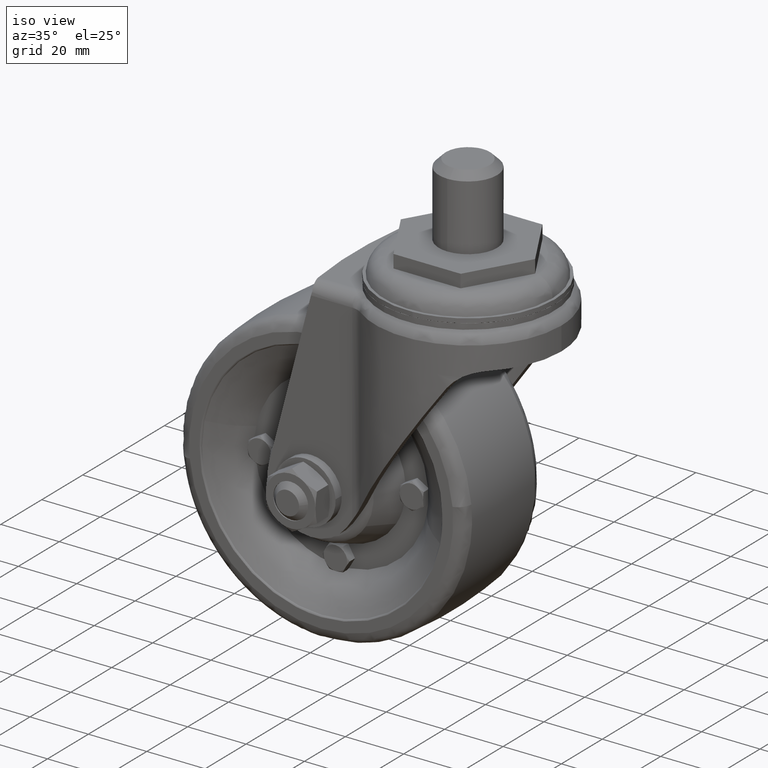
[diagram: clean part render]
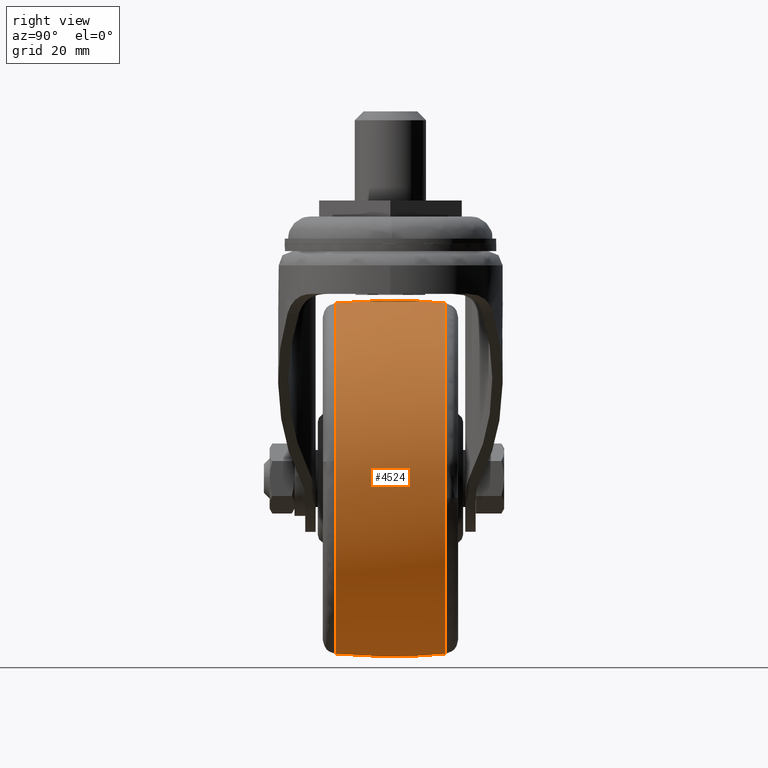
[diagram: tour spotlight — one face highlighted and labeled with its STEP entity id]
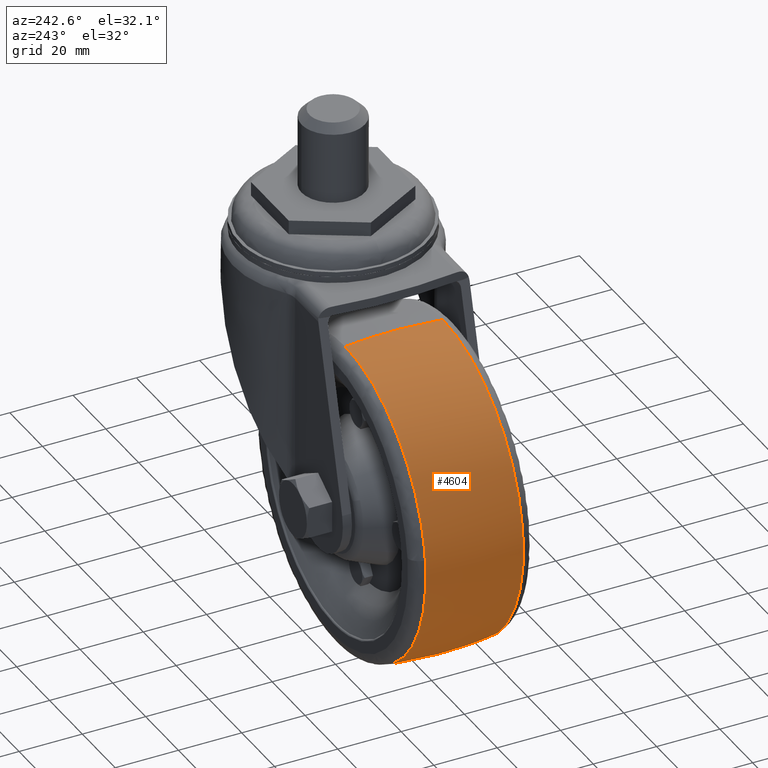
[diagram: tour spotlight — one face highlighted and labeled with its STEP entity id]
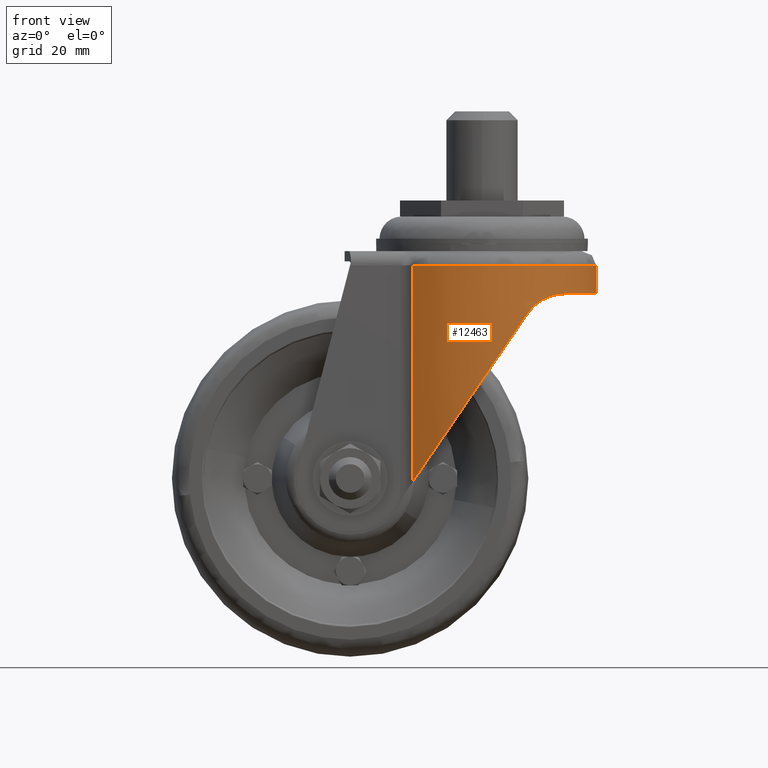
[diagram: tour spotlight — one face highlighted and labeled with its STEP entity id]
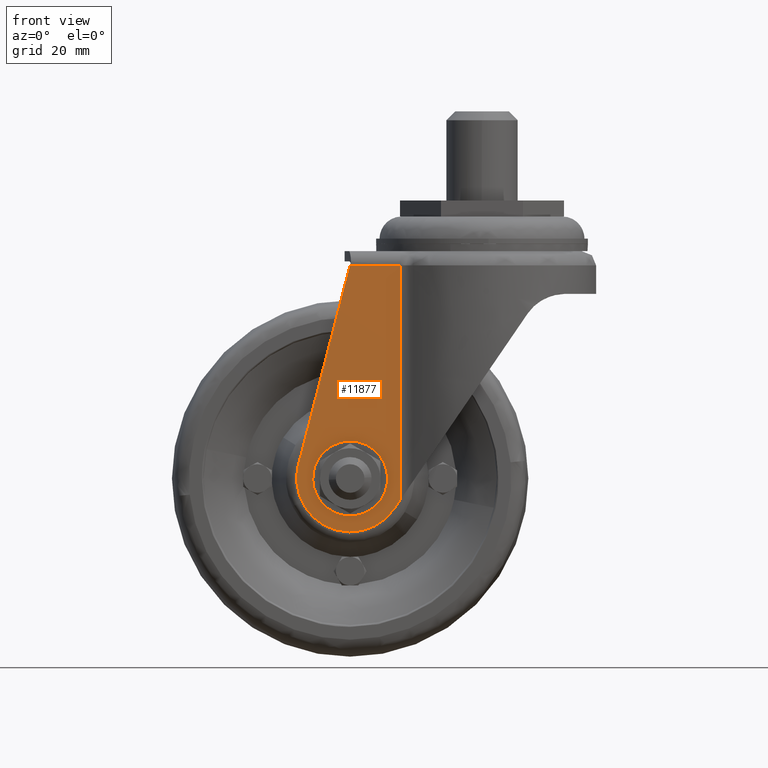
[diagram: tour spotlight — one face highlighted and labeled with its STEP entity id]
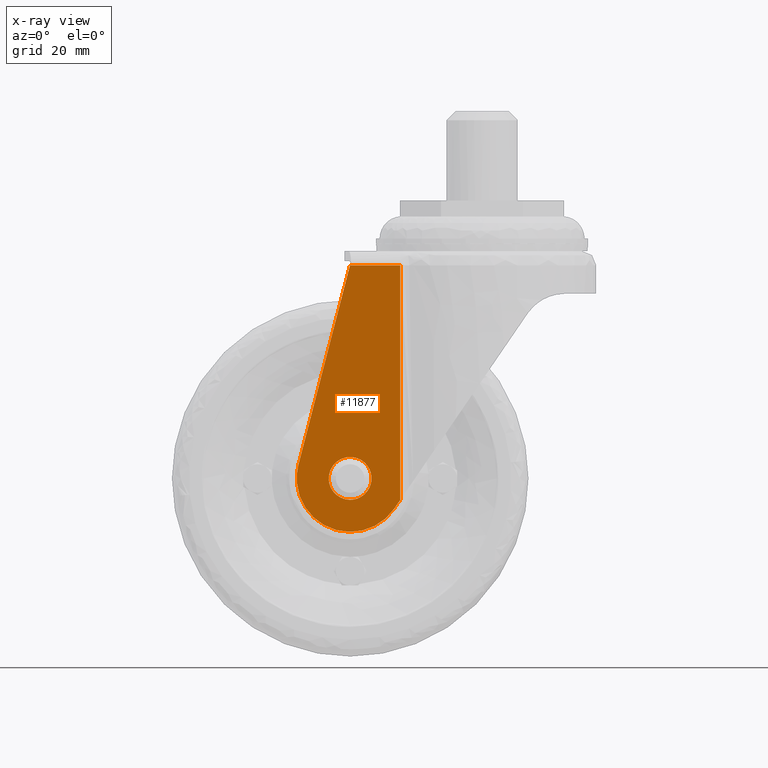
[diagram: x-ray of the same camera — body ghosted, this tour face saturated]
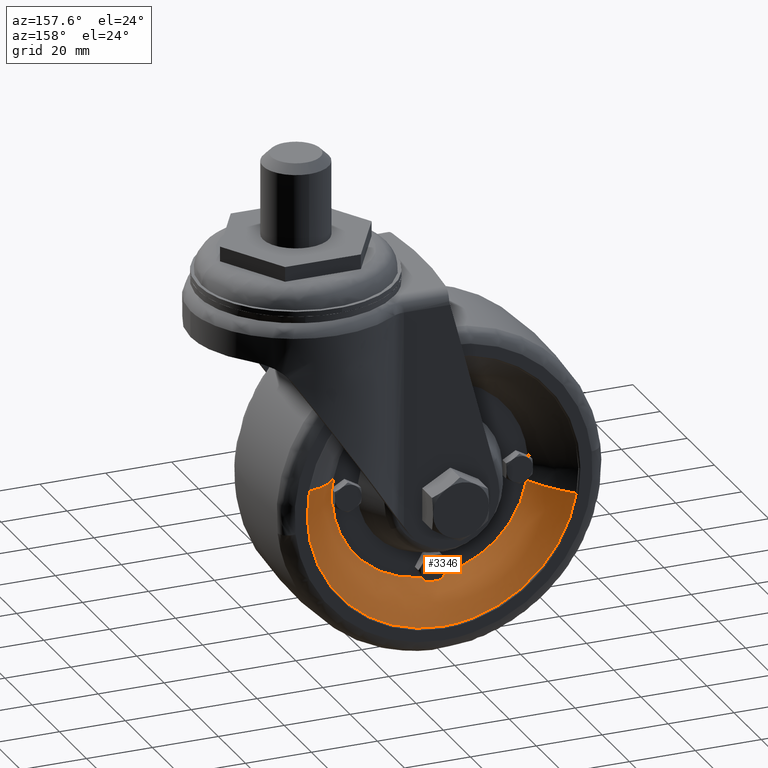
[diagram: tour spotlight — one face highlighted and labeled with its STEP entity id]
A machine part: a face-by-face anatomy tour. The part has 312 B-rep faces; the first image is the clean iso view, then the 5 largest visible faces are spotlighted one at a time (largest first), each with its STEP entity span.

Face 1 — right view, entity #4524. In plain terms, the highlighted face is a freeform B-spline surface patch.
Definition (entity closure, byte-faithful):
#4296=CARTESIAN_POINT('',(11.891878821661811,15.410934890007050,-79.053238610616631));
#4297=VERTEX_POINT('',#4296);
#4298=CARTESIAN_POINT('',(-37.0,15.410934763899361,-24.293756532435118));
#4299=VERTEX_POINT('',#4298);
#4300=CARTESIAN_POINT('',(11.891878821661811,15.410934890007050,-79.053238610616631));
#4301=CARTESIAN_POINT('',(12.206242153597191,15.410934886819268,-76.285517271672560));
#4302=CARTESIAN_POINT('',(12.206242119349900,15.410934883249110,-73.500000130063526));
#4303=CARTESIAN_POINT('',(12.206241514370525,15.410934820182140,-24.293756593786924));
#4304=CARTESIAN_POINT('',(-37.0,15.410934763899361,-24.293756532435118));
#4312=(BOUNDED_CURVE()B_SPLINE_CURVE(2,(#4300,#4301,#4302,#4303,#4304),.UNSPECIFIED.,.F.,.U.)B_SPLINE_CURVE_WITH_KNOTS((3,2,3),(0.230444237518526,0.250000000000000,0.500000000000000),.UNSPECIFIED.)CURVE()GEOMETRIC_REPRESENTATION_ITEM()RATIONAL_B_SPLINE_CURVE((0.957762334974693,0.977088999121799,1.0,0.707106781186548,1.0))REPRESENTATION_ITEM(''));
#4313=EDGE_CURVE('',#4297,#4299,#4312,.T.);
#4390=CARTESIAN_POINT('',(-37.0,15.410934763958540,-122.706243467558810));
#4391=VERTEX_POINT('',#4390);
#4392=CARTESIAN_POINT('',(-37.0,15.410934763958540,-122.706243467558810));
#4393=CARTESIAN_POINT('',(6.933682007419955,15.410934826995927,-122.706243536273530));
#4394=CARTESIAN_POINT('',(11.891878821661811,15.410934890007050,-79.053238610616631));
#4402=(BOUNDED_CURVE()B_SPLINE_CURVE(2,(#4392,#4393,#4394),.UNSPECIFIED.,.F.,.U.)B_SPLINE_CURVE_WITH_KNOTS((3,3),(0.0,0.230444237518526),.UNSPECIFIED.)CURVE()GEOMETRIC_REPRESENTATION_ITEM()RATIONAL_B_SPLINE_CURVE((1.0,0.730017782064749,0.957762334974693))REPRESENTATION_ITEM(''));
#4403=EDGE_CURVE('',#4391,#4297,#4402,.T.);
#4427=CARTESIAN_POINT('',(-38.370946922678868,-16.959582319406202,-122.538158092319660));
#4428=CARTESIAN_POINT('',(-38.397836884592934,-8.507066001675820,-123.499999999999990));
#4429=CARTESIAN_POINT('',(-38.397836884592948,-4.867810E-015,-123.500000000000060));
#4430=CARTESIAN_POINT('',(-38.397836884592934,8.507066001675813,-123.499999999999990));
#4431=CARTESIAN_POINT('',(-38.370946922678868,16.959582319406202,-122.538158092319660));
#4432=CARTESIAN_POINT('',(-37.689465487163623,-16.959582319406202,-122.538158092319730));
#4433=CARTESIAN_POINT('',(-37.702988768323664,-8.507066001675820,-123.499999999999970));
#4434=CARTESIAN_POINT('',(-37.702988768323685,-4.867810E-015,-123.499999999999970));
#4435=CARTESIAN_POINT('',(-37.702988768323664,8.507066001675813,-123.499999999999970));
#4436=CARTESIAN_POINT('',(-37.689465487163623,16.959582319406202,-122.538158092319730));
#4437=CARTESIAN_POINT('',(12.038158092319707,-16.959582319406209,-122.538158092319700));
#4438=CARTESIAN_POINT('',(12.999999999999989,-8.507066001675822,-123.499999999999990));
#4439=CARTESIAN_POINT('',(12.999999999999989,-4.867810E-015,-123.499999999999990));
#4440=CARTESIAN_POINT('',(12.999999999999989,8.507066001675815,-123.499999999999990));
#4441=CARTESIAN_POINT('',(12.038158092319707,16.959582319406209,-122.538158092319700));
#4442=CARTESIAN_POINT('',(12.038158092319710,-16.959582319406202,-73.500000000000014));
#4443=CARTESIAN_POINT('',(12.999999999999996,-8.507066001675819,-73.500000000000000));
#4444=CARTESIAN_POINT('',(12.999999999999989,-4.867810E-015,-73.500000000000000));
#4445=CARTESIAN_POINT('',(12.999999999999996,8.507066001675812,-73.500000000000000));
#4446=CARTESIAN_POINT('',(12.038158092319710,16.959582319406202,-73.500000000000014));
#4447=CARTESIAN_POINT('',(12.038158092319707,-16.959582319406209,-24.461841907680299));
#4448=CARTESIAN_POINT('',(12.999999999999989,-8.507066001675822,-23.500000000000007));
#4449=CARTESIAN_POINT('',(12.999999999999989,-4.867810E-015,-23.500000000000018));
#4450=CARTESIAN_POINT('',(12.999999999999989,8.507066001675815,-23.500000000000007));
#4451=CARTESIAN_POINT('',(12.038158092319707,16.959582319406209,-24.461841907680299));
#4452=CARTESIAN_POINT('',(-37.689465487163631,-16.959582319406202,-24.461841907680292));
#4453=CARTESIAN_POINT('',(-37.702988768323685,-8.507066001675819,-23.500000000000004));
#4454=CARTESIAN_POINT('',(-37.702988768323699,-4.867810E-015,-23.500000000000007));
#4455=CARTESIAN_POINT('',(-37.702988768323685,8.507066001675812,-23.500000000000004));
#4456=CARTESIAN_POINT('',(-37.689465487163631,16.959582319406202,-24.461841907680292));
#4457=CARTESIAN_POINT('',(-38.370946922678890,-16.959582319406209,-24.461841907680292));
#4458=CARTESIAN_POINT('',(-38.397836884592955,-8.507066001675820,-23.500000000000014));
#4459=CARTESIAN_POINT('',(-38.397836884592927,-4.867810E-015,-23.499999999999996));
#4460=CARTESIAN_POINT('',(-38.397836884592955,8.507066001675812,-23.500000000000014));
#4461=CARTESIAN_POINT('',(-38.370946922678890,16.959582319406199,-24.461841907680292));
#4469=(BOUNDED_SURFACE()B_SPLINE_SURFACE(2,2,((#4427,#4432,#4437,#4442,#4447,#4452,#4457),(#4428,#4433,#4438,#4443,#4448,#4453,#4458),(#4429,#4434,#4439,#4444,#4449,#4454,#4459),(#4430,#4435,#4440,#4445,#4450,#4455,#4460),(#4431,#4436,#4441,#4446,#4451,#4456,#4461)),.UNSPECIFIED.,.F.,.F.,.U.)B_SPLINE_SURFACE_WITH_KNOTS((3,2,3),(3,1,2,1,3),(0.0,17.164860317266871,34.329720634533743),(0.0,1.656854249492407,84.499566724111389,167.342279198730410,168.999133448222810),.UNSPECIFIED.)GEOMETRIC_REPRESENTATION_ITEM()RATIONAL_B_SPLINE_SURFACE(((0.990838572176591,0.985101587162289,0.692515351432907,0.979364602147988,0.692515351432907,0.985101587162289,0.990838572176591),(0.999616417988352,0.993828608983852,0.698650349754381,0.988040799979353,0.698650349754381,0.993828608983852,0.999616417988352),(1.011715728752538,1.005857864376269,0.707106781186548,1.0,0.707106781186548,1.005857864376269,1.011715728752539),(0.999616417988352,0.993828608983852,0.698650349754381,0.988040799979353,0.698650349754381,0.993828608983852,0.999616417988352),(0.990838572176591,0.985101587162289,0.692515351432907,0.979364602147988,0.692515351432907,0.985101587162289,0.990838572176591)))REPRESENTATION_ITEM('')SURFACE());
#4470=CARTESIAN_POINT('',(-37.0,-15.410927594411129,-122.706244208071990));
#4471=VERTEX_POINT('',#4470);
#4472=CARTESIAN_POINT('',(-37.0,-15.410927594411129,-122.706244208071990));
#4473=CARTESIAN_POINT('',(-36.999999999999943,-11.091917377430020,-123.152369070369900));
#4474=CARTESIAN_POINT('',(-37.000000000000199,-0.808320013095868,-123.764971878743490));
#4475=CARTESIAN_POINT('',(-36.999999999999702,9.492305068548527,-123.317711761316800));
#4476=CARTESIAN_POINT('',(-37.0,15.410934763958540,-122.706243467558810));
#4477=B_SPLINE_CURVE_WITH_KNOTS('',3,(#4472,#4473,#4474,#4475,#4476),.UNSPECIFIED.,.F.,.U.,(4,1,4),(-3.959780E-009,13.025978226956280,30.876357768077710),.UNSPECIFIED.);
#4478=EDGE_CURVE('',#4471,#4391,#4477,.T.);
#4479=ORIENTED_EDGE('',*,*,#4478,.T.);
#4480=ORIENTED_EDGE('',*,*,#4403,.T.);
#4481=ORIENTED_EDGE('',*,*,#4313,.T.);
#4482=CARTESIAN_POINT('',(-37.0,-15.410927594334760,-24.293755791920091));
#4483=VERTEX_POINT('',#4482);
#4484=CARTESIAN_POINT('',(-37.0,-15.410927594334760,-24.293755791920091));
#4485=CARTESIAN_POINT('',(-36.999999999999879,-10.452055005666340,-23.781499609851942));
#4486=CARTESIAN_POINT('',(-37.000000000000313,-0.161650119165620,-23.235027971120410));
#4487=CARTESIAN_POINT('',(-36.999999999999829,10.132168230290260,-23.748421156437839));
#4488=CARTESIAN_POINT('',(-37.0,15.410934763899361,-24.293756532435118));
#4489=B_SPLINE_CURVE_WITH_KNOTS('',3,(#4484,#4485,#4486,#4487,#4488),.UNSPECIFIED.,.F.,.U.,(4,1,4),(-3.958451E-009,14.955779876917060,30.876357767941411),.UNSPECIFIED.);
#4490=EDGE_CURVE('',#4483,#4299,#4489,.T.);
#4491=ORIENTED_EDGE('',*,*,#4490,.F.);
#4492=CARTESIAN_POINT('',(11.957805506314180,-15.410922276943101,-68.561615083338708));
#4493=VERTEX_POINT('',#4492);
#4494=CARTESIAN_POINT('',(11.957805506314182,-15.410922276943097,-68.561615083338708));
#4495=CARTESIAN_POINT('',(7.492496021033293,-15.410924935621916,-24.293755684045273));
#4496=CARTESIAN_POINT('',(-37.0,-15.410927594334760,-24.293755791920091));
#4504=(BOUNDED_CURVE()B_SPLINE_CURVE(2,(#4494,#4495,#4496),.UNSPECIFIED.,.F.,.U.)B_SPLINE_CURVE_WITH_KNOTS((3,3),(0.267423307870117,0.500000000000000),.UNSPECIFIED.)CURVE()GEOMETRIC_REPRESENTATION_ITEM()RATIONAL_B_SPLINE_CURVE((0.962019900757929,0.727519456084373,1.0))REPRESENTATION_ITEM(''));
#4505=EDGE_CURVE('',#4493,#4483,#4504,.T.);
#4506=ORIENTED_EDGE('',*,*,#4505,.F.);
#4507=CARTESIAN_POINT('',(-37.0,-15.410927594411129,-122.706244208071990));
#4508=CARTESIAN_POINT('',(12.206241941209900,-15.410925190391563,-122.706244110531130));
#4509=CARTESIAN_POINT('',(12.206243010651740,-15.410922531640210,-73.499999794580361));
#4510=CARTESIAN_POINT('',(12.206243064452654,-15.410922397885159,-71.024558304993306));
#4511=CARTESIAN_POINT('',(11.957805506314182,-15.410922276943097,-68.561615083338708));
#4519=(BOUNDED_CURVE()B_SPLINE_CURVE(2,(#4507,#4508,#4509,#4510,#4511),.UNSPECIFIED.,.F.,.U.)B_SPLINE_CURVE_WITH_KNOTS((3,2,3),(0.0,0.250000000000000,0.267423307870117),.UNSPECIFIED.)CURVE()GEOMETRIC_REPRESENTATION_ITEM()RATIONAL_B_SPLINE_CURVE((1.0,0.707106781186548,1.0,0.979587325102175,0.962019900757929))REPRESENTATION_ITEM(''));
#4520=EDGE_CURVE('',#4471,#4493,#4519,.T.);
#4521=ORIENTED_EDGE('',*,*,#4520,.F.);
#4522=EDGE_LOOP('',(#4479,#4480,#4481,#4491,#4506,#4521));
#4523=FACE_OUTER_BOUND('',#4522,.T.);
#4524=ADVANCED_FACE('',(#4523),#4469,.T.);

Face 2 — auxiliary view, entity #4604. In plain terms, the highlighted face is a freeform B-spline surface patch.
Definition (entity closure, byte-faithful):
#4298=CARTESIAN_POINT('',(-37.0,15.410934763899361,-24.293756532435118));
#4299=VERTEX_POINT('',#4298);
#4330=CARTESIAN_POINT('',(-85.891878821662488,15.410934890000370,-67.946761389383298));
#4331=VERTEX_POINT('',#4330);
#4345=CARTESIAN_POINT('',(-37.0,15.410934763899361,-24.293756532435118));
#4346=CARTESIAN_POINT('',(-80.933682007425432,15.410934826936733,-24.293756463720353));
#4347=CARTESIAN_POINT('',(-85.891878821662488,15.410934890000370,-67.946761389383298));
#4355=(BOUNDED_CURVE()B_SPLINE_CURVE(2,(#4345,#4346,#4347),.UNSPECIFIED.,.F.,.U.)B_SPLINE_CURVE_WITH_KNOTS((3,3),(0.500000000000000,0.730444237518547),.UNSPECIFIED.)CURVE()GEOMETRIC_REPRESENTATION_ITEM()RATIONAL_B_SPLINE_CURVE((1.0,0.730017782064724,0.957762334974735))REPRESENTATION_ITEM(''));
#4356=EDGE_CURVE('',#4299,#4331,#4355,.T.);
#4390=CARTESIAN_POINT('',(-37.0,15.410934763958540,-122.706243467558810));
#4391=VERTEX_POINT('',#4390);
#4405=CARTESIAN_POINT('',(-85.891878821662488,15.410934890000370,-67.946761389383298));
#4406=CARTESIAN_POINT('',(-86.206242153597188,15.410934886815923,-70.714482728324384));
#4407=CARTESIAN_POINT('',(-86.206242119349909,15.410934883249110,-73.499999869930363));
#4408=CARTESIAN_POINT('',(-86.206241514370518,15.410934820241327,-122.706243406206950));
#4409=CARTESIAN_POINT('',(-37.0,15.410934763958540,-122.706243467558810));
#4417=(BOUNDED_CURVE()B_SPLINE_CURVE(2,(#4405,#4406,#4407,#4408,#4409),.UNSPECIFIED.,.F.,.U.)B_SPLINE_CURVE_WITH_KNOTS((3,2,3),(0.730444237518547,0.750000000000000,1.0),.UNSPECIFIED.)CURVE()GEOMETRIC_REPRESENTATION_ITEM()RATIONAL_B_SPLINE_CURVE((0.957762334974735,0.977088999121823,1.0,0.707106781186548,1.0))REPRESENTATION_ITEM(''));
#4418=EDGE_CURVE('',#4331,#4391,#4417,.T.);
#4470=CARTESIAN_POINT('',(-37.0,-15.410927594411129,-122.706244208071990));
#4471=VERTEX_POINT('',#4470);
#4472=CARTESIAN_POINT('',(-37.0,-15.410927594411129,-122.706244208071990));
#4473=CARTESIAN_POINT('',(-36.999999999999943,-11.091917377430020,-123.152369070369900));
#4474=CARTESIAN_POINT('',(-37.000000000000199,-0.808320013095868,-123.764971878743490));
#4475=CARTESIAN_POINT('',(-36.999999999999702,9.492305068548527,-123.317711761316800));
#4476=CARTESIAN_POINT('',(-37.0,15.410934763958540,-122.706243467558810));
#4477=B_SPLINE_CURVE_WITH_KNOTS('',3,(#4472,#4473,#4474,#4475,#4476),.UNSPECIFIED.,.F.,.U.,(4,1,4),(-3.959780E-009,13.025978226956280,30.876357768077710),.UNSPECIFIED.);
#4478=EDGE_CURVE('',#4471,#4391,#4477,.T.);
#4482=CARTESIAN_POINT('',(-37.0,-15.410927594334760,-24.293755791920091));
#4483=VERTEX_POINT('',#4482);
#4484=CARTESIAN_POINT('',(-37.0,-15.410927594334760,-24.293755791920091));
#4485=CARTESIAN_POINT('',(-36.999999999999879,-10.452055005666340,-23.781499609851942));
#4486=CARTESIAN_POINT('',(-37.000000000000313,-0.161650119165620,-23.235027971120410));
#4487=CARTESIAN_POINT('',(-36.999999999999829,10.132168230290260,-23.748421156437839));
#4488=CARTESIAN_POINT('',(-37.0,15.410934763899361,-24.293756532435118));
#4489=B_SPLINE_CURVE_WITH_KNOTS('',3,(#4484,#4485,#4486,#4487,#4488),.UNSPECIFIED.,.F.,.U.,(4,1,4),(-3.958451E-009,14.955779876917060,30.876357767941411),.UNSPECIFIED.);
#4490=EDGE_CURVE('',#4483,#4299,#4489,.T.);
#4525=CARTESIAN_POINT('',(-35.629053077321132,-16.959582319406202,-24.461841907680288));
#4526=CARTESIAN_POINT('',(-35.602163115407073,-8.507066001675819,-23.500000000000007));
#4527=CARTESIAN_POINT('',(-35.602163115407073,-4.867810E-015,-23.500000000000014));
#4528=CARTESIAN_POINT('',(-35.602163115407073,8.507066001675812,-23.500000000000007));
#4529=CARTESIAN_POINT('',(-35.629053077321132,16.959582319406202,-24.461841907680288));
#4530=CARTESIAN_POINT('',(-36.310534512836355,-16.959582319406202,-24.461841907680295));
#4531=CARTESIAN_POINT('',(-36.297011231676329,-8.507066001675820,-23.500000000000007));
#4532=CARTESIAN_POINT('',(-36.297011231676336,-4.867810E-015,-23.500000000000007));
#4533=CARTESIAN_POINT('',(-36.297011231676329,8.507066001675813,-23.500000000000007));
#4534=CARTESIAN_POINT('',(-36.310534512836355,16.959582319406202,-24.461841907680295));
#4535=CARTESIAN_POINT('',(-86.038158092319705,-16.959582319406209,-24.461841907680299));
#4536=CARTESIAN_POINT('',(-86.999999999999986,-8.507066001675822,-23.500000000000007));
#4537=CARTESIAN_POINT('',(-86.999999999999986,-4.867810E-015,-23.500000000000018));
#4538=CARTESIAN_POINT('',(-86.999999999999986,8.507066001675815,-23.500000000000007));
#4539=CARTESIAN_POINT('',(-86.038158092319705,16.959582319406209,-24.461841907680299));
#4540=CARTESIAN_POINT('',(-86.038158092319719,-16.959582319406202,-73.500000000000014));
#4541=CARTESIAN_POINT('',(-87.0,-8.507066001675819,-73.500000000000000));
#4542=CARTESIAN_POINT('',(-87.0,-4.867810E-015,-73.500000000000000));
#4543=CARTESIAN_POINT('',(-87.0,8.507066001675812,-73.500000000000000));
#4544=CARTESIAN_POINT('',(-86.038158092319719,16.959582319406202,-73.500000000000014));
#4545=CARTESIAN_POINT('',(-86.038158092319705,-16.959582319406209,-122.538158092319700));
#4546=CARTESIAN_POINT('',(-86.999999999999986,-8.507066001675822,-123.499999999999990));
#4547=CARTESIAN_POINT('',(-86.999999999999986,-4.867810E-015,-123.499999999999990));
#4548=CARTESIAN_POINT('',(-86.999999999999986,8.507066001675815,-123.499999999999990));
#4549=CARTESIAN_POINT('',(-86.038158092319705,16.959582319406209,-122.538158092319700));
#4550=CARTESIAN_POINT('',(-36.310534512836355,-16.959582319406202,-122.538158092319750));
#4551=CARTESIAN_POINT('',(-36.297011231676322,-8.507066001675820,-123.499999999999970));
#4552=CARTESIAN_POINT('',(-36.297011231676336,-4.867810E-015,-123.499999999999970));
#4553=CARTESIAN_POINT('',(-36.297011231676322,8.507066001675813,-123.499999999999970));
#4554=CARTESIAN_POINT('',(-36.310534512836355,16.959582319406202,-122.538158092319750));
#4555=CARTESIAN_POINT('',(-35.629053077321117,-16.959582319406202,-122.538158092319680));
#4556=CARTESIAN_POINT('',(-35.602163115407073,-8.507066001675820,-123.499999999999990));
#4557=CARTESIAN_POINT('',(-35.602163115407073,-4.867810E-015,-123.500000000000060));
#4558=CARTESIAN_POINT('',(-35.602163115407073,8.507066001675813,-123.499999999999990));
#4559=CARTESIAN_POINT('',(-35.629053077321117,16.959582319406202,-122.538158092319680));
#4567=(BOUNDED_SURFACE()B_SPLINE_SURFACE(2,2,((#4525,#4530,#4535,#4540,#4545,#4550,#4555),(#4526,#4531,#4536,#4541,#4546,#4551,#4556),(#4527,#4532,#4537,#4542,#4547,#4552,#4557),(#4528,#4533,#4538,#4543,#4548,#4553,#4558),(#4529,#4534,#4539,#4544,#4549,#4554,#4559)),.UNSPECIFIED.,.F.,.F.,.U.)B_SPLINE_SURFACE_WITH_KNOTS((3,2,3),(3,1,2,1,3),(0.0,17.164860317266871,34.329720634533743),(0.0,1.656854249492394,84.499566724111403,167.342279198730410,168.999133448222810),.UNSPECIFIED.)GEOMETRIC_REPRESENTATION_ITEM()RATIONAL_B_SPLINE_SURFACE(((0.990838572176591,0.985101587162289,0.692515351432907,0.979364602147988,0.692515351432907,0.985101587162289,0.990838572176591),(0.999616417988352,0.993828608983852,0.698650349754381,0.988040799979353,0.698650349754381,0.993828608983852,0.999616417988352),(1.011715728752538,1.005857864376269,0.707106781186548,1.0,0.707106781186548,1.005857864376269,1.011715728752538),(0.999616417988352,0.993828608983852,0.698650349754381,0.988040799979353,0.698650349754381,0.993828608983852,0.999616417988352),(0.990838572176591,0.985101587162289,0.692515351432907,0.979364602147988,0.692515351432907,0.985101587162289,0.990838572176591)))REPRESENTATION_ITEM('')SURFACE());
#4568=ORIENTED_EDGE('',*,*,#4478,.F.);
#4569=CARTESIAN_POINT('',(-85.957805506313406,-15.410922276950750,-78.438384916661221));
#4570=VERTEX_POINT('',#4569);
#4571=CARTESIAN_POINT('',(-85.957805506313406,-15.410922276950750,-78.438384916661221));
#4572=CARTESIAN_POINT('',(-81.492496021026184,-15.410924935698274,-122.706244315946830));
#4573=CARTESIAN_POINT('',(-37.0,-15.410927594411129,-122.706244208071990));
#4581=(BOUNDED_CURVE()B_SPLINE_CURVE(2,(#4571,#4572,#4573),.UNSPECIFIED.,.F.,.U.)B_SPLINE_CURVE_WITH_KNOTS((3,3),(0.767423307870144,1.0),.UNSPECIFIED.)CURVE()GEOMETRIC_REPRESENTATION_ITEM()RATIONAL_B_SPLINE_CURVE((0.962019900757875,0.727519456084404,1.0))REPRESENTATION_ITEM(''));
#4582=EDGE_CURVE('',#4570,#4471,#4581,.T.);
#4583=ORIENTED_EDGE('',*,*,#4582,.F.);
#4584=CARTESIAN_POINT('',(-37.0,-15.410927594334760,-24.293755791920091));
#4585=CARTESIAN_POINT('',(-86.206241941209910,-15.410925190315179,-24.293755889460972));
#4586=CARTESIAN_POINT('',(-86.206243010651747,-15.410922531640191,-73.500000205411766));
#4587=CARTESIAN_POINT('',(-86.206243064452650,-15.410922397888985,-75.975441695002743));
#4588=CARTESIAN_POINT('',(-85.957805506313406,-15.410922276950750,-78.438384916661221));
#4596=(BOUNDED_CURVE()B_SPLINE_CURVE(2,(#4584,#4585,#4586,#4587,#4588),.UNSPECIFIED.,.F.,.U.)B_SPLINE_CURVE_WITH_KNOTS((3,2,3),(0.500000000000000,0.750000000000000,0.767423307870144),.UNSPECIFIED.)CURVE()GEOMETRIC_REPRESENTATION_ITEM()RATIONAL_B_SPLINE_CURVE((1.0,0.707106781186548,1.0,0.979587325102143,0.962019900757875))REPRESENTATION_ITEM(''));
#4597=EDGE_CURVE('',#4483,#4570,#4596,.T.);
#4598=ORIENTED_EDGE('',*,*,#4597,.F.);
#4599=ORIENTED_EDGE('',*,*,#4490,.T.);
#4600=ORIENTED_EDGE('',*,*,#4356,.T.);
#4601=ORIENTED_EDGE('',*,*,#4418,.T.);
#4602=EDGE_LOOP('',(#4568,#4583,#4598,#4599,#4600,#4601));
#4603=FACE_OUTER_BOUND('',#4602,.T.);
#4604=ADVANCED_FACE('',(#4603),#4567,.T.);

Face 3 — front view, entity #12463. In plain terms, the highlighted face is a freeform B-spline surface patch.
Definition (entity closure, byte-faithful):
#11664=CARTESIAN_POINT('',(-19.344002331605651,-25.093060186617802,-13.699999999999999));
#11665=VERTEX_POINT('',#11664);
#11666=CARTESIAN_POINT('',(-19.344002331605651,-25.093060186617802,-74.252694187189306));
#11667=VERTEX_POINT('',#11666);
#11668=CARTESIAN_POINT('',(-19.344002331605651,-25.093060186617802,-13.699999999999999));
#11669=CARTESIAN_POINT('',(-19.344002331605651,-25.093060186617802,-74.252694187189306));
#11670=QUASI_UNIFORM_CURVE('',1,(#11668,#11669),.UNSPECIFIED.,.F.,.U.);
#11671=EDGE_CURVE('',#11665,#11667,#11670,.T.);
#11883=CARTESIAN_POINT('',(23.181616000000201,-21.714622615046299,-21.699999999999999));
#11884=VERTEX_POINT('',#11883);
#11899=CARTESIAN_POINT('',(32.0,0.000000011422180,-21.699999999999999));
#11900=VERTEX_POINT('',#11899);
#11914=CARTESIAN_POINT('',(31.999999999999989,0.000000011422177,-21.699999999999996));
#11915=CARTESIAN_POINT('',(32.000000004638594,-12.592380828729151,-21.699999999999996));
#11916=CARTESIAN_POINT('',(23.181616000000218,-21.714622615046292,-21.699999999999999));
#11924=(BOUNDED_CURVE()B_SPLINE_CURVE(2,(#11914,#11915,#11916),.UNSPECIFIED.,.F.,.U.)B_SPLINE_CURVE_WITH_KNOTS((3,3),(0.499999999773233,1.0),.UNSPECIFIED.)CURVE()GEOMETRIC_REPRESENTATION_ITEM()RATIONAL_B_SPLINE_CURVE((0.862212750000003,0.862212749937512,1.0))REPRESENTATION_ITEM(''));
#11925=EDGE_CURVE('',#11900,#11884,#11924,.T.);
#11939=CARTESIAN_POINT('',(12.862751000000200,-28.843189272506748,-27.145142000000000));
#11940=VERTEX_POINT('',#11939);
#11946=CARTESIAN_POINT('',(12.862751000000220,-28.843189272506699,-27.145142000000000));
#11947=CARTESIAN_POINT('',(12.192375710243089,-29.132876756156179,-28.125673586716829));
#11948=CARTESIAN_POINT('',(11.520906163641341,-29.396076113768469,-29.107805699909729));
#11949=CARTESIAN_POINT('',(10.175930175520261,-29.873168736400320,-31.075049212429612));
#11950=CARTESIAN_POINT('',(9.502423372873102,-30.087053259780561,-32.060161139964023));
#11951=CARTESIAN_POINT('',(7.479011771667335,-30.658721166169521,-35.019725757314802));
#11952=CARTESIAN_POINT('',(6.126228575276135,-30.946828618020550,-36.998388566503202));
#11953=CARTESIAN_POINT('',(3.413487246766410,-31.349363454937819,-40.966208681351901));
#11954=CARTESIAN_POINT('',(2.053526451956371,-31.463726385566819,-42.955369881626503));
#11955=CARTESIAN_POINT('',(-0.673452233064876,-31.521624681649470,-46.944014418234481));
#11956=CARTESIAN_POINT('',(-2.040469687176246,-31.465170603552671,-48.943497116701792));
#11957=CARTESIAN_POINT('',(-3.753795893375250,-31.284357208715740,-51.449512014918596));
#11958=CARTESIAN_POINT('',(-4.096689759125485,-31.242660331011169,-51.951049394647242));
#11959=CARTESIAN_POINT('',(-4.611379042155504,-31.171679427436381,-52.703865178681262));
#11960=CARTESIAN_POINT('',(-4.783078120399370,-31.146600640587621,-52.955002671665611));
#11961=CARTESIAN_POINT('',(-5.126198354191567,-31.093666242451452,-53.456871151031528));
#11962=CARTESIAN_POINT('',(-5.297560057440689,-31.065821295675470,-53.707515178871773));
#11963=CARTESIAN_POINT('',(-6.153375400939457,-30.919700153730169,-54.959282643334006));
#11964=CARTESIAN_POINT('',(-6.834852762950489,-30.780757232337631,-55.956052794761227));
#11965=CARTESIAN_POINT('',(-8.869640676018218,-30.296961112843938,-58.932257096317898));
#11966=CARTESIAN_POINT('',(-10.213356751441729,-29.885485648519978,-60.897657784056840));
#11967=CARTESIAN_POINT('',(-12.208427821035430,-29.125903105607570,-63.815769819764803));
#11968=CARTESIAN_POINT('',(-12.870022744349001,-28.848900203169670,-64.783458709603707));
#11969=CARTESIAN_POINT('',(-14.185972656709341,-28.244621632318420,-66.708246922000356));
#11970=CARTESIAN_POINT('',(-14.840328929741840,-27.917354879665108,-67.665348122593613));
#11971=CARTESIAN_POINT('',(-16.141273008866818,-27.208878575146990,-69.568187892532620));
#11972=CARTESIAN_POINT('',(-16.787862859686289,-26.827683221488730,-70.513929452620062));
#11973=CARTESIAN_POINT('',(-18.072549196038821,-26.006316154767809,-72.392989661228697));
#11974=CARTESIAN_POINT('',(-18.710649038366800,-25.566167750669020,-73.326313219602000));
#11975=CARTESIAN_POINT('',(-19.344002331605669,-25.093060186617791,-74.252694187189277));
#11976=B_SPLINE_CURVE_WITH_KNOTS('',3,(#11946,#11947,#11948,#11949,#11950,#11951,#11952,#11953,#11954,#11955,#11956,#11957,#11958,#11959,#11960,#11961,#11962,#11963,#11964,#11965,#11966,#11967,#11968,#11969,#11970,#11971,#11972,#11973,#11974,#11975),.UNSPECIFIED.,.F.,.U.,(4,2,2,2,2,2,2,2,2,2,2,2,2,2,4),(0.0,0.062500000000000,0.125000000000000,0.250000000000001,0.375000000000001,0.500000000000002,0.531250000000002,0.546875000000002,0.562500000000002,0.625000000000001,0.750000000000001,0.812500000000001,0.875000000000000,0.937500000000000,1.0),.UNSPECIFIED.);
#11977=EDGE_CURVE('',#11940,#11667,#11976,.T.);
#12062=CARTESIAN_POINT('',(12.862751000000220,-28.843189272506649,-27.145142000000000));
#12063=CARTESIAN_POINT('',(13.192631570928469,-28.700638862374930,-26.662638576563399));
#12064=CARTESIAN_POINT('',(13.549049918375850,-28.540101288619031,-26.213619089109969));
#12065=CARTESIAN_POINT('',(14.308062414867040,-28.178876305936178,-25.377944887075941));
#12066=CARTESIAN_POINT('',(14.710694381224760,-27.978188928725420,-24.991325993975639));
#12067=CARTESIAN_POINT('',(15.239966452026460,-27.698532873647970,-24.546019646418070));
#12068=CARTESIAN_POINT('',(15.347124001142440,-27.641157442179559,-24.458862587978949));
#12069=CARTESIAN_POINT('',(15.563986917786730,-27.523407456830601,-24.288352800676272));
#12070=CARTESIAN_POINT('',(15.673761716345121,-27.462990325994149,-24.204961695242378));
#12071=CARTESIAN_POINT('',(16.004176801160138,-27.278564914079631,-23.962371299953059));
#12072=CARTESIAN_POINT('',(16.226746853873639,-27.150932319855130,-23.810064665592758));
#12073=CARTESIAN_POINT('',(16.900182811788291,-26.753599291790859,-23.379766674386541));
#12074=CARTESIAN_POINT('',(17.356744351241240,-26.469480116415440,-23.128324272575849));
#12075=CARTESIAN_POINT('',(18.049123221392271,-26.012588574657201,-22.799438617346642));
#12076=CARTESIAN_POINT('',(18.281180929857619,-25.855168415214820,-22.697876703809289));
#12077=CARTESIAN_POINT('',(18.630740940848781,-25.611082391854850,-22.557177702588280));
#12078=CARTESIAN_POINT('',(18.747701606603901,-25.528253347473189,-22.512149354453520));
#12079=CARTESIAN_POINT('',(18.981008431065220,-25.360644281063799,-22.426285815585089));
#12080=CARTESIAN_POINT('',(19.097266980508230,-25.275932024347551,-22.385474342070239));
#12081=CARTESIAN_POINT('',(19.676502865395541,-24.847836377569941,-22.191545515052841));
#12082=CARTESIAN_POINT('',(20.133295581248241,-24.490860033477599,-22.068688940061872));
#12083=CARTESIAN_POINT('',(21.031840923885131,-23.747849401932289,-21.877685572358111));
#12084=CARTESIAN_POINT('',(21.473600504512788,-23.361814602404621,-21.809579345593050));
#12085=CARTESIAN_POINT('',(22.340474738656770,-22.560379678169650,-21.720724275173151));
#12086=CARTESIAN_POINT('',(22.765593959559538,-22.144979655445130,-21.700000005985579));
#12087=CARTESIAN_POINT('',(23.181616000000201,-21.714622615046299,-21.699999999999999));
#12088=B_SPLINE_CURVE_WITH_KNOTS('',3,(#12062,#12063,#12064,#12065,#12066,#12067,#12068,#12069,#12070,#12071,#12072,#12073,#12074,#12075,#12076,#12077,#12078,#12079,#12080,#12081,#12082,#12083,#12084,#12085,#12086,#12087),.UNSPECIFIED.,.F.,.U.,(4,2,2,2,2,2,2,2,2,2,2,2,4),(0.0,0.125000000000003,0.250000000000006,0.281250000000007,0.312500000000007,0.375000000000009,0.500000000000011,0.562500000000011,0.593750000000011,0.625000000000010,0.750000000000007,0.875000000000004,1.0),.UNSPECIFIED.);
#12089=EDGE_CURVE('',#11940,#11884,#12088,.T.);
#12276=CARTESIAN_POINT('',(32.000000078571418,0.000000816345271,-13.700000000000070));
#12277=VERTEX_POINT('',#12276);
#12351=CARTESIAN_POINT('',(32.0,0.000000011422180,-21.699999999999999));
#12352=CARTESIAN_POINT('',(32.000000078571418,0.000000816345271,-13.700000000000070));
#12353=QUASI_UNIFORM_CURVE('',1,(#12351,#12352),.UNSPECIFIED.,.F.,.U.);
#12354=EDGE_CURVE('',#11900,#12277,#12353,.T.);
#12363=CARTESIAN_POINT('',(32.000000000000014,0.626322628173160,-77.277301113017586));
#12364=CARTESIAN_POINT('',(31.999999999999986,0.314456231506046,-77.277301113017529));
#12365=CARTESIAN_POINT('',(32.0,-31.500000000000007,-77.277301113017572));
#12366=CARTESIAN_POINT('',(1.959370E-015,-31.500000000000000,-77.277301113017558));
#12367=CARTESIAN_POINT('',(-12.897316793664906,-31.500000000000007,-77.277301113017572));
#12368=CARTESIAN_POINT('',(-22.190036018811288,-22.696244519316913,-77.277301113017558));
#12369=CARTESIAN_POINT('',(32.000000000000014,0.626322628173160,-10.675394066707648));
#12370=CARTESIAN_POINT('',(31.999999999999986,0.314456231506046,-10.675394066707632));
#12371=CARTESIAN_POINT('',(32.0,-31.500000000000007,-10.675394066707645));
#12372=CARTESIAN_POINT('',(1.959370E-015,-31.500000000000000,-10.675394066707639));
#12373=CARTESIAN_POINT('',(-12.897316793664906,-31.500000000000007,-10.675394066707643));
#12374=CARTESIAN_POINT('',(-22.190036018811288,-22.696244519316913,-10.675394066707641));
#12382=(BOUNDED_SURFACE()B_SPLINE_SURFACE(2,1,((#12363,#12369),(#12364,#12370),(#12365,#12371),(#12366,#12372),(#12367,#12373),(#12368,#12374)),.UNSPECIFIED.,.F.,.F.,.U.)B_SPLINE_SURFACE_WITH_KNOTS((3,1,2,3),(2,2),(0.0,0.745927710988346,53.363713369954588,79.064506493573148),(0.0,66.601907046309947),.UNSPECIFIED.)GEOMETRIC_REPRESENTATION_ITEM()RATIONAL_B_SPLINE_SURFACE(((1.008304308725173,1.008304308725173),(1.004152154362587,1.004152154362587),(0.707106781186547,0.707106781186547),(1.0,1.0),(0.856938335018046,0.856938335018046),(0.853631629678530,0.853631629678530)))REPRESENTATION_ITEM('')SURFACE());
#12383=CARTESIAN_POINT('',(32.000000078571418,0.000000816345271,-13.700000000000070));
#12384=CARTESIAN_POINT('',(32.000010233323451,-1.448537612819667,-13.700000000000070));
#12385=CARTESIAN_POINT('',(31.898995333742100,-2.897458683888381,-13.700000000000070));
#12386=CARTESIAN_POINT('',(31.667958841323760,-4.529795758410582,-13.700000000000070));
#12387=CARTESIAN_POINT('',(31.640385890208179,-4.712823727989081,-13.700000000000070));
#12388=CARTESIAN_POINT('',(31.581875875610010,-5.078892409038361,-13.700000000000070));
#12389=CARTESIAN_POINT('',(31.550920816382110,-5.262014392750557,-13.700000000000070));
#12390=CARTESIAN_POINT('',(31.453376248365199,-5.809203696929521,-13.700000000000070));
#12391=CARTESIAN_POINT('',(31.382004061406739,-6.171796100346225,-13.700000000000070));
#12392=CARTESIAN_POINT('',(31.149156241835449,-7.253074664734199,-13.700000000000070));
#12393=CARTESIAN_POINT('',(30.968972662417698,-7.965270267699407,-13.700000000000070));
#12394=CARTESIAN_POINT('',(30.355048816121212,-10.076400920513150,-13.700000000000070));
#12395=CARTESIAN_POINT('',(29.848284909568729,-11.450001059264380,-13.700000000000070));
#12396=CARTESIAN_POINT('',(28.941328593655118,-13.459466667723509,-13.700000000000070));
#12397=CARTESIAN_POINT('',(28.614454443438710,-14.120769264169271,-13.700000000000070));
#12398=CARTESIAN_POINT('',(28.174417796480281,-14.936488303966060,-13.700000000000070));
#12399=CARTESIAN_POINT('',(28.084810992308181,-15.099123236716180,-13.700000000000070));
#12400=CARTESIAN_POINT('',(27.903159361874280,-15.422013149448730,-13.700000000000070));
#12401=CARTESIAN_POINT('',(27.626768478337159,-15.903260533552110,-13.700000000000070));
#12402=CARTESIAN_POINT('',(27.338741762120279,-16.375327892355021,-13.700000000000070));
#12403=CARTESIAN_POINT('',(26.353161436946660,-17.928774558846129,-13.700000000000070));
#12404=CARTESIAN_POINT('',(25.483495054560901,-19.107467930550520,-13.700000000000070));
#12405=CARTESIAN_POINT('',(24.059606506001408,-20.781316722119371,-13.700000000000070));
#12406=CARTESIAN_POINT('',(23.565005946373930,-21.323510275963290,-13.700000000000070));
#12407=CARTESIAN_POINT('',(22.792795417949709,-22.112887946640829,-13.700000000000060));
#12408=CARTESIAN_POINT('',(22.530335734094638,-22.372024796287231,-13.700000000000070));
#12409=CARTESIAN_POINT('',(22.128975207137142,-22.754678077160481,-13.700000000000070));
#12410=CARTESIAN_POINT('',(21.993909560069469,-22.881220264910379,-13.700000000000070));
#12411=CARTESIAN_POINT('',(21.721202442454270,-23.132272458840902,-13.700000000000070));
#12412=CARTESIAN_POINT('',(21.583510414971990,-23.256822815223899,-13.700000000000070));
#12413=CARTESIAN_POINT('',(20.337465917121470,-24.364312690092721,-13.700000000000070));
#12414=CARTESIAN_POINT('',(19.173544926926581,-25.261067064932408,-13.700000000000070));
#12415=CARTESIAN_POINT('',(16.737719858713010,-26.886481282225098,-13.700000000000070));
#12416=CARTESIAN_POINT('',(15.465801685493471,-27.615119183036690,-13.700000000000070));
#12417=CARTESIAN_POINT('',(13.807346995992511,-28.419195659078941,-13.700000000000070));
#12418=CARTESIAN_POINT('',(13.472212825102460,-28.574650960875552,-13.700000000000070));
#12419=CARTESIAN_POINT('',(12.964279423098770,-28.799689165191129,-13.700000000000070));
#12420=CARTESIAN_POINT('',(12.793931140428571,-28.873412632309780,-13.700000000000070));
#12421=CARTESIAN_POINT('',(12.452482104510370,-29.017702161926159,-13.700000000000070));
#12422=CARTESIAN_POINT('',(12.281374663203801,-29.088275567657220,-13.700000000000070));
#12423=CARTESIAN_POINT('',(11.423939033821229,-29.433352253945309,-13.700000000000070));
#12424=CARTESIAN_POINT('',(10.731922826913250,-29.684514257242370,-13.700000000000070));
#12425=CARTESIAN_POINT('',(8.638113918825543,-30.365119391768008,-13.700000000000070));
#12426=CARTESIAN_POINT('',(7.218642524048403,-30.722016474708269,-13.700000000000070));
#12427=CARTESIAN_POINT('',(5.054252703344464,-31.112986729446551,-13.700000000000070));
#12428=CARTESIAN_POINT('',(4.326905101613304,-31.219163298112530,-13.700000000000070));
#12429=CARTESIAN_POINT('',(3.226893785367520,-31.341537262873789,-13.700000000000070));
#12430=CARTESIAN_POINT('',(2.858723671722733,-31.376174538810631,-13.700000000000070));
#12431=CARTESIAN_POINT('',(2.304185708400953,-31.418762814787758,-13.700000000000070));
#12432=CARTESIAN_POINT('',(2.119089898679785,-31.431383973158638,-13.700000000000070));
#12433=CARTESIAN_POINT('',(1.749523666466489,-31.453414410375569,-13.700000000000070));
#12434=CARTESIAN_POINT('',(1.564892995635722,-31.462836469409179,-13.700000000000070));
#12435=CARTESIAN_POINT('',(-0.095421465851452,-31.533405580924459,-13.700000000000070));
#12436=CARTESIAN_POINT('',(-3.027819002387649,-31.457449472507911,-13.700000000000070));
#12437=CARTESIAN_POINT('',(-5.922745952878325,-30.989899576805811,-13.700000000000070));
#12438=CARTESIAN_POINT('',(-7.720024411571700,-30.571740725649441,-13.700000000000070));
#12439=CARTESIAN_POINT('',(-8.078874832775231,-30.481783455707429,-13.700000000000070));
#12440=CARTESIAN_POINT('',(-8.795345198601506,-30.289009576397952,-13.700000000000070));
#12441=CARTESIAN_POINT('',(-9.151325025624654,-30.186630763189640,-13.700000000000070));
#12442=CARTESIAN_POINT('',(-10.211754173497800,-29.861924105447361,-13.700000000000070));
#12443=CARTESIAN_POINT('',(-10.909061559244490,-29.621950494478849,-13.700000000000070));
#12444=CARTESIAN_POINT('',(-12.972333479569700,-28.832218788987628,-13.700000000000070));
#12445=CARTESIAN_POINT('',(-14.309787915840269,-28.212991291949720,-13.700000000000070));
#12446=CARTESIAN_POINT('',(-15.932901291122651,-27.320280222595549,-13.700000000000070));
#12447=CARTESIAN_POINT('',(-16.255135924096390,-27.135722515492962,-13.700000000000070));
#12448=CARTESIAN_POINT('',(-16.891873180444950,-26.756231208105689,-13.700000000000070));
#12449=CARTESIAN_POINT('',(-17.206730773501089,-26.561108805719069,-13.700000000000070));
#12450=CARTESIAN_POINT('',(-18.140780844556659,-25.959627274666410,-13.700000000000070));
#12451=CARTESIAN_POINT('',(-18.749463606877072,-25.537173718534021,-13.699999999999999));
#12452=CARTESIAN_POINT('',(-19.344002331605651,-25.093060186617802,-13.699999999999999));
#12453=B_SPLINE_CURVE_WITH_KNOTS('',3,(#12383,#12384,#12385,#12386,#12387,#12388,#12389,#12390,#12391,#12392,#12393,#12394,#12395,#12396,#12397,#12398,#12399,#12400,#12401,#12402,#12403,#12404,#12405,#12406,#12407,#12408,#12409,#12410,#12411,#12412,#12413,#12414,#12415,#12416,#12417,#12418,#12419,#12420,#12421,#12422,#12423,#12424,#12425,#12426,#12427,#12428,#12429,#12430,#12431,#12432,#12433,#12434,#12435,#12436,#12437,#12438,#12439,#12440,#12441,#12442,#12443,#12444,#12445,#12446,#12447,#12448,#12449,#12450,#12451,#12452),.UNSPECIFIED.,.F.,.U.,(4,2,2,2,2,2,2,2,2,1,2,2,2,2,2,2,2,2,2,2,2,2,2,2,2,2,2,1,2,2,2,2,2,2,2,4),(0.500317110982811,0.531249999999997,0.535156249999997,0.539062499999997,0.546874999999997,0.562499999999997,0.593749999999997,0.609374999999997,0.613281249999997,0.617187499999997,0.624999999999997,0.656249999999998,0.671874999999998,0.679687499999998,0.683593749999998,0.687499999999998,0.718749999999998,0.749999999999998,0.757812499999999,0.761718749999999,0.765624999999999,0.781249999999999,0.812499999999999,0.828124999999999,0.835937499999999,0.839843749999999,0.843749999999999,0.874999999999999,0.906250000000000,0.914062500000000,0.921875000000000,0.937500000000000,0.968750000000000,0.976562500000000,0.984375000000000,1.0),.UNSPECIFIED.);
#12454=EDGE_CURVE('',#12277,#11665,#12453,.T.);
#12455=ORIENTED_EDGE('',*,*,#12454,.T.);
#12456=ORIENTED_EDGE('',*,*,#11671,.T.);
#12457=ORIENTED_EDGE('',*,*,#11977,.F.);
#12458=ORIENTED_EDGE('',*,*,#12089,.T.);
#12459=ORIENTED_EDGE('',*,*,#11925,.F.);
#12460=ORIENTED_EDGE('',*,*,#12354,.T.);
#12461=EDGE_LOOP('',(#12455,#12456,#12457,#12458,#12459,#12460));
#12462=FACE_OUTER_BOUND('',#12461,.T.);
#12463=ADVANCED_FACE('',(#12462),#12382,.F.);

Face 4 — front view, entity #11877. An x-ray twin of the same camera follows (body ghosted, this face saturated) — the face is partly hidden behind the body. In plain terms, the highlighted face is a freeform B-spline surface patch.
Definition (entity closure, byte-faithful):
#9272=CARTESIAN_POINT('',(-31.008526824289920,-23.899999999999999,-73.028460834345083));
#9273=VERTEX_POINT('',#9272);
#9279=CARTESIAN_POINT('',(-37.0,-23.899999999999999,-67.489999999999995));
#9280=VERTEX_POINT('',#9279);
#9281=CARTESIAN_POINT('',(-37.0,-23.899999999999999,-67.489999999999995));
#9282=CARTESIAN_POINT('',(-31.444413145441654,-23.899999999999991,-67.490000000000009));
#9283=CARTESIAN_POINT('',(-31.008526824289913,-23.899999999999999,-73.028460834345069));
#9291=(BOUNDED_CURVE()B_SPLINE_CURVE(2,(#9281,#9282,#9283),.UNSPECIFIED.,.F.,.U.)B_SPLINE_CURVE_WITH_KNOTS((3,3),(0.0,0.236331300623309),.UNSPECIFIED.)CURVE()GEOMETRIC_REPRESENTATION_ITEM()RATIONAL_B_SPLINE_CURVE((1.0,0.723120658616278,0.969723356152077))REPRESENTATION_ITEM(''));
#9292=EDGE_CURVE('',#9280,#9273,#9291,.T.);
#9294=CARTESIAN_POINT('',(-42.991473175710077,-23.899999999999999,-73.971539165654931));
#9295=VERTEX_POINT('',#9294);
#9296=CARTESIAN_POINT('',(-42.991473175710091,-23.900000000000009,-73.971539165654946));
#9297=CARTESIAN_POINT('',(-43.010000000000005,-23.900000000000006,-73.736133543282165));
#9298=CARTESIAN_POINT('',(-43.009999999999998,-23.899999999999999,-73.500000000000000));
#9299=CARTESIAN_POINT('',(-43.009999999999998,-23.899999999999991,-67.490000000000009));
#9300=CARTESIAN_POINT('',(-37.0,-23.899999999999999,-67.489999999999995));
#9308=(BOUNDED_CURVE()B_SPLINE_CURVE(2,(#9296,#9297,#9298,#9299,#9300),.UNSPECIFIED.,.F.,.U.)B_SPLINE_CURVE_WITH_KNOTS((3,2,3),(0.736331300623309,0.750000000000000,1.0),.UNSPECIFIED.)CURVE()GEOMETRIC_REPRESENTATION_ITEM()RATIONAL_B_SPLINE_CURVE((0.969723356152077,0.983986122570270,1.0,0.707106781186548,1.0))REPRESENTATION_ITEM(''));
#9309=EDGE_CURVE('',#9295,#9280,#9308,.T.);
#9385=CARTESIAN_POINT('',(-37.0,-23.899999999999999,-79.509999999999991));
#9386=VERTEX_POINT('',#9385);
#9387=CARTESIAN_POINT('',(-37.0,-23.899999999999999,-79.509999999999991));
#9388=CARTESIAN_POINT('',(-42.555586854558328,-23.900000000000002,-79.509999999999991));
#9389=CARTESIAN_POINT('',(-42.991473175710077,-23.899999999999999,-73.971539165654931));
#9397=(BOUNDED_CURVE()B_SPLINE_CURVE(2,(#9387,#9388,#9389),.UNSPECIFIED.,.F.,.U.)B_SPLINE_CURVE_WITH_KNOTS((3,3),(0.500000000000000,0.736331300623308),.UNSPECIFIED.)CURVE()GEOMETRIC_REPRESENTATION_ITEM()RATIONAL_B_SPLINE_CURVE((1.0,0.723120658616278,0.969723356152076))REPRESENTATION_ITEM(''));
#9398=EDGE_CURVE('',#9386,#9295,#9397,.T.);
#9400=CARTESIAN_POINT('',(-31.008526824289920,-23.900000000000006,-73.028460834345069));
#9401=CARTESIAN_POINT('',(-30.989999999999995,-23.899999999999995,-73.263866456717849));
#9402=CARTESIAN_POINT('',(-30.989999999999998,-23.899999999999999,-73.500000000000000));
#9403=CARTESIAN_POINT('',(-30.989999999999998,-23.899999999999991,-79.509999999999991));
#9404=CARTESIAN_POINT('',(-37.0,-23.899999999999999,-79.509999999999991));
#9412=(BOUNDED_CURVE()B_SPLINE_CURVE(2,(#9400,#9401,#9402,#9403,#9404),.UNSPECIFIED.,.F.,.U.)B_SPLINE_CURVE_WITH_KNOTS((3,2,3),(0.236331300623309,0.250000000000000,0.500000000000000),.UNSPECIFIED.)CURVE()GEOMETRIC_REPRESENTATION_ITEM()RATIONAL_B_SPLINE_CURVE((0.969723356152077,0.983986122570270,1.0,0.707106781186548,1.0))REPRESENTATION_ITEM(''));
#9413=EDGE_CURVE('',#9273,#9386,#9412,.T.);
#10238=CARTESIAN_POINT('',(-51.561368064315900,-23.899999999999999,-69.899088990891414));
#10239=VERTEX_POINT('',#10238);
#10268=CARTESIAN_POINT('',(-24.617362426277548,-23.899999999999999,-81.965830539163704));
#10269=VERTEX_POINT('',#10268);
#10275=CARTESIAN_POINT('',(-24.617362426277548,-23.899999999999999,-81.965830539163704));
#10276=CARTESIAN_POINT('',(-25.322994237577610,-23.900000000000009,-82.998580095918058));
#10277=CARTESIAN_POINT('',(-26.595140434713159,-23.900000000000031,-84.434247385284976));
#10278=CARTESIAN_POINT('',(-28.927745022062101,-23.899999999999981,-86.228575381574842));
#10279=CARTESIAN_POINT('',(-31.005176008138751,-23.900000000000059,-87.329008896643359));
#10280=CARTESIAN_POINT('',(-33.127265160230017,-23.899999999999860,-88.028607237315256));
#10281=CARTESIAN_POINT('',(-35.049248822467653,-23.900000000000169,-88.416006629252209));
#10282=CARTESIAN_POINT('',(-37.334548683972343,-23.899999999999789,-88.572621016330331));
#10283=CARTESIAN_POINT('',(-39.779762758796508,-23.899999999999761,-88.313291179091465));
#10284=CARTESIAN_POINT('',(-42.403755126404448,-23.900000000000141,-87.575086748361429));
#10285=CARTESIAN_POINT('',(-44.916645911588247,-23.899999999999888,-86.366808571850939));
#10286=CARTESIAN_POINT('',(-47.431556865380387,-23.899999999999839,-84.435397893584096));
#10287=CARTESIAN_POINT('',(-49.272345383693747,-23.900000000000912,-82.266703579675990));
#10288=CARTESIAN_POINT('',(-50.664302227686122,-23.899999999999331,-79.859780754306158));
#10289=CARTESIAN_POINT('',(-51.482719106904192,-23.900000000000411,-77.657316890170804));
#10290=CARTESIAN_POINT('',(-51.993929238318643,-23.899999999999860,-75.036263380914207));
#10291=CARTESIAN_POINT('',(-52.054405507594872,-23.899999999999970,-72.522114846082957));
#10292=CARTESIAN_POINT('',(-51.757213244926021,-23.899999999999991,-70.690919143382374));
#10293=CARTESIAN_POINT('',(-51.561368064315900,-23.899999999999999,-69.899088990891414));
#10294=B_SPLINE_CURVE_WITH_KNOTS('',3,(#10275,#10276,#10277,#10278,#10279,#10280,#10281,#10282,#10283,#10284,#10285,#10286,#10287,#10288,#10289,#10290,#10291,#10292,#10293),.UNSPECIFIED.,.F.,.U.,(4,1,1,1,1,1,1,1,1,1,1,1,1,1,1,1,4),(0.000000139867161,3.752275514169646,5.710037828260049,8.809832266919536,10.767578156278629,12.399032455426530,14.683097027996521,17.619681287454529,19.740638307500902,22.840244647763679,25.940062647730731,29.202941991143820,31.323851725868181,34.260470966890189,36.218220557446323,39.318036532286222,41.765133512817229),.UNSPECIFIED.);
#10295=EDGE_CURVE('',#10269,#10239,#10294,.T.);
#11673=CARTESIAN_POINT('',(-22.934730618530651,-23.899999999999999,-13.699999999999999));
#11674=VERTEX_POINT('',#11673);
#11688=CARTESIAN_POINT('',(-22.934730618530700,-23.899999999999999,-79.504711316166507));
#11689=VERTEX_POINT('',#11688);
#11690=CARTESIAN_POINT('',(-22.934730618530700,-23.899999999999999,-79.504711316166507));
#11691=CARTESIAN_POINT('',(-22.934730618530651,-23.899999999999999,-13.699999999999999));
#11692=QUASI_UNIFORM_CURVE('',1,(#11690,#11691),.UNSPECIFIED.,.F.,.U.);
#11693=EDGE_CURVE('',#11689,#11674,#11692,.T.);
#11845=CARTESIAN_POINT('',(-53.441605015278043,-23.899999999999999,-92.221707612416438));
#11846=CARTESIAN_POINT('',(-53.441605015278043,-23.899999999999999,-9.964430442623325));
#11847=CARTESIAN_POINT('',(-21.483405185833501,-23.899999999999999,-92.221707612416438));
#11848=CARTESIAN_POINT('',(-21.483405185833501,-23.899999999999999,-9.964430442623325));
#11849=B_SPLINE_SURFACE_WITH_KNOTS('',1,1,((#11845,#11847),(#11846,#11848)),.UNSPECIFIED.,.F.,.F.,.U.,(2,2),(2,2),(0.0,82.257277169793113),(0.0,31.958199829444538),.UNSPECIFIED.);
#11850=ORIENTED_EDGE('',*,*,#11693,.T.);
#11851=CARTESIAN_POINT('',(-37.033993591940899,-23.899999999999999,-13.699999999999999));
#11852=VERTEX_POINT('',#11851);
#11853=CARTESIAN_POINT('',(-22.934730618530651,-23.899999999999999,-13.699999999999999));
#11854=CARTESIAN_POINT('',(-37.033993591940899,-23.899999999999999,-13.699999999999999));
#11855=QUASI_UNIFORM_CURVE('',1,(#11853,#11854),.UNSPECIFIED.,.F.,.U.);
#11856=EDGE_CURVE('',#11674,#11852,#11855,.T.);
#11857=ORIENTED_EDGE('',*,*,#11856,.T.);
#11858=CARTESIAN_POINT('',(-51.561368064315900,-23.899999999999999,-69.899088990891414));
#11859=CARTESIAN_POINT('',(-37.033993591940899,-23.899999999999999,-13.699999999999999));
#11860=QUASI_UNIFORM_CURVE('',1,(#11858,#11859),.UNSPECIFIED.,.F.,.U.);
#11861=EDGE_CURVE('',#10239,#11852,#11860,.T.);
#11862=ORIENTED_EDGE('',*,*,#11861,.F.);
#11863=ORIENTED_EDGE('',*,*,#10295,.F.);
#11864=CARTESIAN_POINT('',(-22.934730618530700,-23.899999999999999,-79.504711316166507));
#11865=CARTESIAN_POINT('',(-24.617362426277548,-23.899999999999999,-81.965830539163704));
#11866=QUASI_UNIFORM_CURVE('',1,(#11864,#11865),.UNSPECIFIED.,.F.,.U.);
#11867=EDGE_CURVE('',#11689,#10269,#11866,.T.);
#11868=ORIENTED_EDGE('',*,*,#11867,.F.);
#11869=EDGE_LOOP('',(#11850,#11857,#11862,#11863,#11868));
#11870=FACE_OUTER_BOUND('',#11869,.T.);
#11871=ORIENTED_EDGE('',*,*,#9398,.T.);
#11872=ORIENTED_EDGE('',*,*,#9309,.T.);
#11873=ORIENTED_EDGE('',*,*,#9292,.T.);
#11874=ORIENTED_EDGE('',*,*,#9413,.T.);
#11875=EDGE_LOOP('',(#11871,#11872,#11873,#11874));
#11876=FACE_BOUND('',#11875,.T.);
#11877=ADVANCED_FACE('',(#11870,#11876),#11849,.F.);

Face 5 — auxiliary view, entity #3346. In plain terms, the highlighted face is a freeform B-spline surface patch.
Definition (entity closure, byte-faithful):
#578=CARTESIAN_POINT('',(-66.290788952272308,9.000000000061894,-78.706936004598788));
#579=VERTEX_POINT('',#578);
#580=CARTESIAN_POINT('',(-39.514298507656953,9.0,-103.143562589783000));
#581=VERTEX_POINT('',#580);
#582=CARTESIAN_POINT('',(-66.290788952272308,9.000000000061894,-78.706936004598788));
#583=CARTESIAN_POINT('',(-62.290172668530651,9.000000000030946,-101.211765551567450));
#584=CARTESIAN_POINT('',(-39.514298507656953,9.0,-103.143562589783000));
#592=(BOUNDED_CURVE()B_SPLINE_CURVE(2,(#582,#583,#584),.UNSPECIFIED.,.F.,.U.)B_SPLINE_CURVE_WITH_KNOTS((3,3),(0.069688646149254,1.0),.UNSPECIFIED.)CURVE()GEOMETRIC_REPRESENTATION_ITEM()RATIONAL_B_SPLINE_CURVE((0.969443179617723,0.780761845216274,1.0))REPRESENTATION_ITEM(''));
#593=EDGE_CURVE('',#579,#581,#592,.T.);
#695=CARTESIAN_POINT('',(-7.709211047727465,9.000000000061979,-68.293063995401155));
#696=VERTEX_POINT('',#695);
#710=CARTESIAN_POINT('',(-7.356448413410100,9.0,-70.985571768138200));
#711=VERTEX_POINT('',#710);
#712=CARTESIAN_POINT('',(-7.356448413410100,9.0,-70.985571768138200));
#713=CARTESIAN_POINT('',(-7.471324010474795,9.000000000030990,-69.631259624680013));
#714=CARTESIAN_POINT('',(-7.709211047727465,9.000000000061979,-68.293063995401155));
#722=(BOUNDED_CURVE()B_SPLINE_CURVE(2,(#712,#713,#714),.UNSPECIFIED.,.F.,.U.)B_SPLINE_CURVE_WITH_KNOTS((3,3),(0.0,0.069688646149258),.UNSPECIFIED.)CURVE()GEOMETRIC_REPRESENTATION_ITEM()RATIONAL_B_SPLINE_CURVE((1.0,0.983577100152654,0.969443179617721))REPRESENTATION_ITEM(''));
#723=EDGE_CURVE('',#711,#696,#722,.T.);
#753=CARTESIAN_POINT('',(-7.356437410216770,9.0,-76.014298507656804));
#754=VERTEX_POINT('',#753);
#760=CARTESIAN_POINT('',(-34.485571768138151,9.0,-103.143551586589600));
#761=VERTEX_POINT('',#760);
#762=CARTESIAN_POINT('',(-34.485571768138122,9.0,-103.143551586589890));
#763=CARTESIAN_POINT('',(-9.477559992424050,9.0,-101.022319565928910));
#764=CARTESIAN_POINT('',(-7.356437410216788,9.0,-76.014298507656804));
#772=(BOUNDED_CURVE()B_SPLINE_CURVE(2,(#762,#763,#764),.UNSPECIFIED.,.F.,.U.)CURVE()GEOMETRIC_REPRESENTATION_ITEM()QUASI_UNIFORM_CURVE()RATIONAL_B_SPLINE_CURVE((1.0,0.764338945368927,1.0))REPRESENTATION_ITEM(''));
#773=EDGE_CURVE('',#761,#754,#772,.T.);
#2716=CARTESIAN_POINT('',(-34.691434000000051,9.476747303996000,-103.499932000000000));
#2717=VERTEX_POINT('',#2716);
#2728=CARTESIAN_POINT('',(-34.485571768138151,8.999999999999913,-103.143551586589690));
#2729=CARTESIAN_POINT('',(-34.553425263486709,9.160239958654515,-103.261016827809200));
#2730=CARTESIAN_POINT('',(-34.622048711697218,9.319151059389952,-103.379814980446100));
#2731=CARTESIAN_POINT('',(-34.691434000000108,9.476747303995976,-103.499932000000000));
#2732=QUASI_UNIFORM_CURVE('',3,(#2728,#2729,#2730,#2731),.UNSPECIFIED.,.F.,.U.);
#2733=EDGE_CURVE('',#761,#2717,#2732,.T.);
#2743=CARTESIAN_POINT('',(-39.308543999999998,9.476743606429901,-103.499931000000000));
#2744=VERTEX_POINT('',#2743);
#2753=CARTESIAN_POINT('',(-37.0,9.353905504683679,-103.499931492919400));
#2754=VERTEX_POINT('',#2753);
#2755=CARTESIAN_POINT('',(-34.691434000000051,9.476747303996000,-103.499932000000000));
#2756=CARTESIAN_POINT('',(-35.084864046332228,9.435177375661585,-103.499931913579100));
#2757=CARTESIAN_POINT('',(-35.481517594267842,9.403599842705360,-103.499931826451700));
#2758=CARTESIAN_POINT('',(-36.081757439225477,9.372537314859667,-103.499931694608090));
#2759=CARTESIAN_POINT('',(-36.383191349620787,9.361079226135326,-103.499931628398300));
#2760=CARTESIAN_POINT('',(-36.737244689800747,9.355090495191607,-103.499931550632000));
#2761=CARTESIAN_POINT('',(-36.902187576977013,9.354048968616562,-103.499931514403200));
#2762=CARTESIAN_POINT('',(-36.972070707249969,9.353917071914177,-103.499931499053900));
#2763=CARTESIAN_POINT('',(-36.991137906131428,9.353906405315049,-103.499931494865900));
#2764=CARTESIAN_POINT('',(-36.998343274961996,9.353905564930471,-103.499931493283300));
#2765=CARTESIAN_POINT('',(-36.999177539494809,9.353905512085380,-103.499931493100110));
#2766=CARTESIAN_POINT('',(-37.0,9.353905504683679,-103.499931492919400));
#2767=B_SPLINE_CURVE_WITH_KNOTS('',3,(#2755,#2756,#2757,#2758,#2759,#2760,#2761,#2762,#2763,#2764,#2765,#2766),.UNSPECIFIED.,.F.,.U.,(4,2,1,1,1,1,2,4),(0.0,0.250000000000094,0.375000000000139,0.437500000000161,0.468750000000172,0.476562500000174,0.480468750000173,0.480990305964004),.UNSPECIFIED.);
#2768=EDGE_CURVE('',#2717,#2754,#2767,.T.);
#2770=CARTESIAN_POINT('',(-37.0,9.353905504683679,-103.499931492919400));
#2771=CARTESIAN_POINT('',(-37.005337446426410,9.353905453751681,-103.499931498841600));
#2772=CARTESIAN_POINT('',(-37.010177766296003,9.353907319560831,-103.499931497793200));
#2773=CARTESIAN_POINT('',(-37.038653075832428,9.353927471008612,-103.499931491625900));
#2774=CARTESIAN_POINT('',(-37.810780255441202,9.355726450648909,-103.499931324394200));
#2775=CARTESIAN_POINT('',(-38.574713529547033,9.399208015246698,-103.499931158937200));
#2776=CARTESIAN_POINT('',(-39.308544000000012,9.476743606429848,-103.499931000000000));
#2777=B_SPLINE_CURVE_WITH_KNOTS('',3,(#2770,#2771,#2772,#2773,#2774,#2775,#2776),.UNSPECIFIED.,.F.,.U.,(4,2,1,4),(0.480990305964008,0.484375000000172,0.500000000000167,1.0),.UNSPECIFIED.);
#2778=EDGE_CURVE('',#2754,#2744,#2777,.T.);
#2793=CARTESIAN_POINT('',(-39.308543999999983,9.476743606429880,-103.499931000000000));
#2794=CARTESIAN_POINT('',(-39.377893169033840,9.319148518558860,-103.379817698960390));
#2795=CARTESIAN_POINT('',(-39.446480706972267,9.160238647562702,-103.261023548911600));
#2796=CARTESIAN_POINT('',(-39.514298507656939,8.999999999999947,-103.143562589783000));
#2797=QUASI_UNIFORM_CURVE('',3,(#2793,#2794,#2795,#2796),.UNSPECIFIED.,.F.,.U.);
#2798=EDGE_CURVE('',#2744,#581,#2797,.T.);
#2867=CARTESIAN_POINT('',(-7.000068000000000,9.476747303995779,-71.191434000000001));
#2868=VERTEX_POINT('',#2867);
#2879=CARTESIAN_POINT('',(-7.356448413410171,9.000000000000044,-70.985571768138215));
#2880=CARTESIAN_POINT('',(-7.238983172190728,9.160239958654548,-71.053425263486730));
#2881=CARTESIAN_POINT('',(-7.120185019553950,9.319151059389899,-71.122048711697190));
#2882=CARTESIAN_POINT('',(-7.000068000000103,9.476747303995829,-71.191434000000044));
#2883=QUASI_UNIFORM_CURVE('',3,(#2879,#2880,#2881,#2882),.UNSPECIFIED.,.F.,.U.);
#2884=EDGE_CURVE('',#711,#2868,#2883,.T.);
#2894=CARTESIAN_POINT('',(-7.000069000000000,9.476743606429650,-75.808544000000012));
#2895=VERTEX_POINT('',#2894);
#2904=CARTESIAN_POINT('',(-7.000068000000000,9.476747303995975,-71.191434000000100));
#2905=CARTESIAN_POINT('',(-7.000068085211322,9.435177375167472,-71.584864046282760));
#2906=CARTESIAN_POINT('',(-7.000068171120811,9.403599841713792,-71.981517594168452));
#2907=CARTESIAN_POINT('',(-7.000068301124173,9.372537313116430,-72.581757439050648));
#2908=CARTESIAN_POINT('',(-7.000068366410448,9.361079224014897,-72.883191349408094));
#2909=CARTESIAN_POINT('',(-7.000068443093338,9.355090492628619,-73.237244689543729));
#2910=CARTESIAN_POINT('',(-7.000068478817611,9.354048965847532,-73.402187576699291));
#2911=CARTESIAN_POINT('',(-7.000068493953299,9.353917069057873,-73.472070706963535));
#2912=CARTESIAN_POINT('',(-7.000068498082978,9.353906402434916,-73.491137905842606));
#2913=CARTESIAN_POINT('',(-7.000068500836492,9.353904919629477,-73.503851187418519));
#2914=CARTESIAN_POINT('',(-7.000068502037531,9.353906766679346,-73.509396508718510));
#2915=CARTESIAN_POINT('',(-7.000068508374086,9.353927471008600,-73.538653075832386));
#2916=CARTESIAN_POINT('',(-7.000068675605792,9.355726450648881,-74.310780255441145));
#2917=CARTESIAN_POINT('',(-7.000068841062815,9.399208015246689,-75.074713529547026));
#2918=CARTESIAN_POINT('',(-7.000068999999999,9.476743606429839,-75.808543999999983));
#2919=B_SPLINE_CURVE_WITH_KNOTS('',3,(#2904,#2905,#2906,#2907,#2908,#2909,#2910,#2911,#2912,#2913,#2914,#2915,#2916,#2917,#2918),.UNSPECIFIED.,.F.,.U.,(4,2,1,1,1,1,2,2,1,4),(0.0,0.249999999999940,0.374999999999911,0.437499999999892,0.468749999999882,0.476562499999884,0.480468749999885,0.484374999999886,0.499999999999889,1.0),.UNSPECIFIED.);
#2920=EDGE_CURVE('',#2868,#2895,#2919,.T.);
#2935=CARTESIAN_POINT('',(-7.000069000000083,9.476743606429729,-75.808544000000040));
#2936=CARTESIAN_POINT('',(-7.120182301039654,9.319148518558803,-75.877893169033854));
#2937=CARTESIAN_POINT('',(-7.238976451088353,9.160238647562743,-75.946480706972238));
#2938=CARTESIAN_POINT('',(-7.356437410216842,9.000000000000085,-76.014298507656889));
#2939=QUASI_UNIFORM_CURVE('',3,(#2935,#2936,#2937,#2938),.UNSPECIFIED.,.F.,.U.);
#2940=EDGE_CURVE('',#2895,#754,#2939,.T.);
#3230=CARTESIAN_POINT('',(-66.026929979468633,8.387153579922801,-77.827027914752776));
#3231=CARTESIAN_POINT('',(-65.955575843620338,8.387153579922801,-78.228419238208701));
#3232=CARTESIAN_POINT('',(-60.748872588537651,8.387153579922803,-107.517898895604630));
#3233=CARTESIAN_POINT('',(-31.865486846466506,8.387153579922801,-102.383385742071140));
#3234=CARTESIAN_POINT('',(-2.982101104395384,8.387153579922803,-97.248872588537651));
#3235=CARTESIAN_POINT('',(-8.188804359490421,8.387153579922801,-67.959392931072287));
#3236=CARTESIAN_POINT('',(-8.260158495350785,8.387153579922801,-67.558001607548505));
#3237=CARTESIAN_POINT('',(-70.639724292103409,15.492831604063989,-78.514654534925924));
#3238=CARTESIAN_POINT('',(-70.557030963572430,15.492831604063994,-78.979832680318850));
#3239=CARTESIAN_POINT('',(-64.522908095750438,15.492831604063989,-112.923829549119120));
#3240=CARTESIAN_POINT('',(-31.049539273315652,15.492831604063987,-106.973368822434810));
#3241=CARTESIAN_POINT('',(2.423829549119144,15.492831604063989,-101.022908095750410));
#3242=CARTESIAN_POINT('',(-3.610293318717141,15.492831604063987,-67.078911226869636));
#3243=CARTESIAN_POINT('',(-3.692986647262108,15.492831604063987,-66.613733081398067));
#3244=CARTESIAN_POINT('',(-78.387135177555948,18.796786538652970,-79.669556661748302));
#3245=CARTESIAN_POINT('',(-78.285397127134502,18.796786538652963,-80.241867856032997));
#3246=CARTESIAN_POINT('',(-70.861583048279144,18.796786538652981,-122.003351234342020));
#3247=CARTESIAN_POINT('',(-29.679115906968548,18.796786538652970,-114.682467141310540));
#3248=CARTESIAN_POINT('',(11.503351234342020,18.796786538652981,-107.361583048279130));
#3249=CARTESIAN_POINT('',(4.079537155469061,18.796786538652970,-65.600099669871071));
#3250=CARTESIAN_POINT('',(3.977799105030403,18.796786538652970,-65.027788475489615));
#3258=(BOUNDED_SURFACE()B_SPLINE_SURFACE(2,2,((#3230,#3237,#3244),(#3231,#3238,#3245),(#3232,#3239,#3246),(#3233,#3240,#3247),(#3234,#3241,#3248),(#3235,#3242,#3249),(#3236,#3243,#3250)),.UNSPECIFIED.,.F.,.F.,.U.)B_SPLINE_SURFACE_WITH_KNOTS((3,1,2,1,3),(3,3),(0.0,1.386061698342752,70.689146620963157,139.992231543583610,141.378293242164800),(0.0,16.624486753162149),.UNSPECIFIED.)GEOMETRIC_REPRESENTATION_ITEM()RATIONAL_B_SPLINE_SURFACE(((0.953262023303427,0.911479222998581,0.952248547763269),(0.947742607633169,0.906201730993709,0.946735000146748),(0.666252408428209,0.637049638724336,0.665544071682376),(0.942223191962912,0.900924238988836,0.941221452530228),(0.666252408428209,0.637049638724336,0.665544071682376),(0.947742607634119,0.906201730994617,0.946735000147697),(0.953262023305326,0.911479223000397,0.952248547765166)))REPRESENTATION_ITEM('')SURFACE());
#3259=CARTESIAN_POINT('',(-77.514822365826987,18.499999999984460,-80.702198876917436));
#3260=VERTEX_POINT('',#3259);
#3261=CARTESIAN_POINT('',(-37.0,18.500000000000000,-114.650000000000010));
#3262=VERTEX_POINT('',#3261);
#3263=CARTESIAN_POINT('',(-77.514822365827001,18.499999999984460,-80.702198876917421));
#3264=CARTESIAN_POINT('',(-71.480023227031197,18.499999999992227,-114.649999999996990));
#3265=CARTESIAN_POINT('',(-37.0,18.500000000000000,-114.650000000000010));
#3273=(BOUNDED_CURVE()B_SPLINE_CURVE(2,(#3263,#3264,#3265),.UNSPECIFIED.,.F.,.U.)B_SPLINE_CURVE_WITH_KNOTS((3,3),(0.780081746790076,1.0),.UNSPECIFIED.)CURVE()GEOMETRIC_REPRESENTATION_ITEM()RATIONAL_B_SPLINE_CURVE((0.937995440889962,0.742349739766054,1.0))REPRESENTATION_ITEM(''));
#3274=EDGE_CURVE('',#3260,#3262,#3273,.T.);
#3275=ORIENTED_EDGE('',*,*,#3274,.F.);
#3276=CARTESIAN_POINT('',(-66.290788952272308,9.000000000061894,-78.706936004598788));
#3277=CARTESIAN_POINT('',(-70.613859980344756,15.320983997922740,-79.475435419997112));
#3278=CARTESIAN_POINT('',(-77.514822365826987,18.499999999984460,-80.702198876917436));
#3286=(BOUNDED_CURVE()B_SPLINE_CURVE(2,(#3276,#3277,#3278),.UNSPECIFIED.,.F.,.U.)B_SPLINE_CURVE_WITH_KNOTS((3,3),(-1.469186230859736,-0.543316072593339),.UNSPECIFIED.)CURVE()GEOMETRIC_REPRESENTATION_ITEM()RATIONAL_B_SPLINE_CURVE((0.938640439103487,0.904461501539437,0.937729680387601))REPRESENTATION_ITEM(''));
#3287=EDGE_CURVE('',#579,#3260,#3286,.T.);
#3288=ORIENTED_EDGE('',*,*,#3287,.F.);
#3289=ORIENTED_EDGE('',*,*,#593,.T.);
#3290=ORIENTED_EDGE('',*,*,#2798,.F.);
#3291=ORIENTED_EDGE('',*,*,#2778,.F.);
#3292=ORIENTED_EDGE('',*,*,#2768,.F.);
#3293=ORIENTED_EDGE('',*,*,#2733,.F.);
#3294=ORIENTED_EDGE('',*,*,#773,.T.);
#3295=ORIENTED_EDGE('',*,*,#2940,.F.);
#3296=ORIENTED_EDGE('',*,*,#2920,.F.);
#3297=ORIENTED_EDGE('',*,*,#2884,.F.);
#3298=ORIENTED_EDGE('',*,*,#723,.T.);
#3299=CARTESIAN_POINT('',(3.514822365826983,18.499999999984460,-66.297801123082579));
#3300=VERTEX_POINT('',#3299);
#3301=CARTESIAN_POINT('',(-7.709211047727465,9.000000000061979,-68.293063995401155));
#3302=CARTESIAN_POINT('',(-3.386140019655089,15.320983997922745,-67.524564580002846));
#3303=CARTESIAN_POINT('',(3.514822365826983,18.499999999984460,-66.297801123082579));
#3311=(BOUNDED_CURVE()B_SPLINE_CURVE(2,(#3301,#3302,#3303),.UNSPECIFIED.,.F.,.U.)B_SPLINE_CURVE_WITH_KNOTS((3,3),(-1.469186230859723,-0.543316072593339),.UNSPECIFIED.)CURVE()GEOMETRIC_REPRESENTATION_ITEM()RATIONAL_B_SPLINE_CURVE((0.938640439103486,0.904461501539438,0.937729680387601))REPRESENTATION_ITEM(''));
#3312=EDGE_CURVE('',#696,#3300,#3311,.T.);
#3313=ORIENTED_EDGE('',*,*,#3312,.T.);
#3314=CARTESIAN_POINT('',(4.146750968971375,18.500000003078210,-74.017092541225310));
#3315=VERTEX_POINT('',#3314);
#3316=CARTESIAN_POINT('',(4.146750968971375,18.500000003078217,-74.017092541225310));
#3317=CARTESIAN_POINT('',(4.149999999983972,18.500000002975391,-73.758556477881768));
#3318=CARTESIAN_POINT('',(4.149999999983357,18.500000002872451,-73.500000000005684));
#3319=CARTESIAN_POINT('',(4.149999999974717,18.500000001427598,-69.870891710788612));
#3320=CARTESIAN_POINT('',(3.514822365826984,18.499999999984468,-66.297801123082579));
#3328=(BOUNDED_CURVE()B_SPLINE_CURVE(2,(#3316,#3317,#3318,#3319,#3320),.UNSPECIFIED.,.F.,.U.)B_SPLINE_CURVE_WITH_KNOTS((3,2,3),(0.247784295921644,0.250000000000000,0.280081746790076),.UNSPECIFIED.)CURVE()GEOMETRIC_REPRESENTATION_ITEM()RATIONAL_B_SPLINE_CURVE((0.994854295643819,0.997404141202209,1.0,0.964757041420494,0.937995440889962))REPRESENTATION_ITEM(''));
#3329=EDGE_CURVE('',#3315,#3300,#3328,.T.);
#3330=ORIENTED_EDGE('',*,*,#3329,.F.);
#3331=CARTESIAN_POINT('',(-37.0,18.500000000000000,-114.650000000000010));
#3332=CARTESIAN_POINT('',(3.636115915660266,18.500000001539778,-114.650000000002580));
#3333=CARTESIAN_POINT('',(4.146750968971375,18.500000003078217,-74.017092541225310));
#3341=(BOUNDED_CURVE()B_SPLINE_CURVE(2,(#3331,#3332,#3333),.UNSPECIFIED.,.F.,.U.)B_SPLINE_CURVE_WITH_KNOTS((3,3),(0.0,0.247784295921644),.UNSPECIFIED.)CURVE()GEOMETRIC_REPRESENTATION_ITEM()RATIONAL_B_SPLINE_CURVE((1.0,0.709702639984339,0.994854295643819))REPRESENTATION_ITEM(''));
#3342=EDGE_CURVE('',#3262,#3315,#3341,.T.);
#3343=ORIENTED_EDGE('',*,*,#3342,.F.);
#3344=EDGE_LOOP('',(#3275,#3288,#3289,#3290,#3291,#3292,#3293,#3294,#3295,#3296,#3297,#3298,#3313,#3330,#3343));
#3345=FACE_OUTER_BOUND('',#3344,.T.);
#3346=ADVANCED_FACE('',(#3345),#3258,.T.);